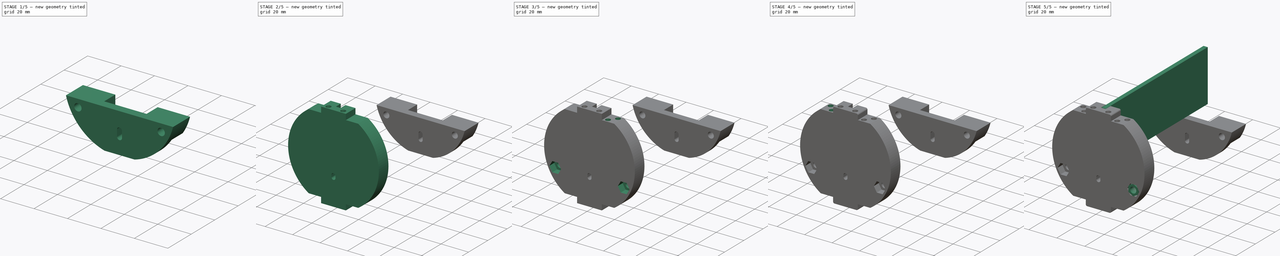
[diagram: build sequence overview — one tinted view per stage of 5, left to right]
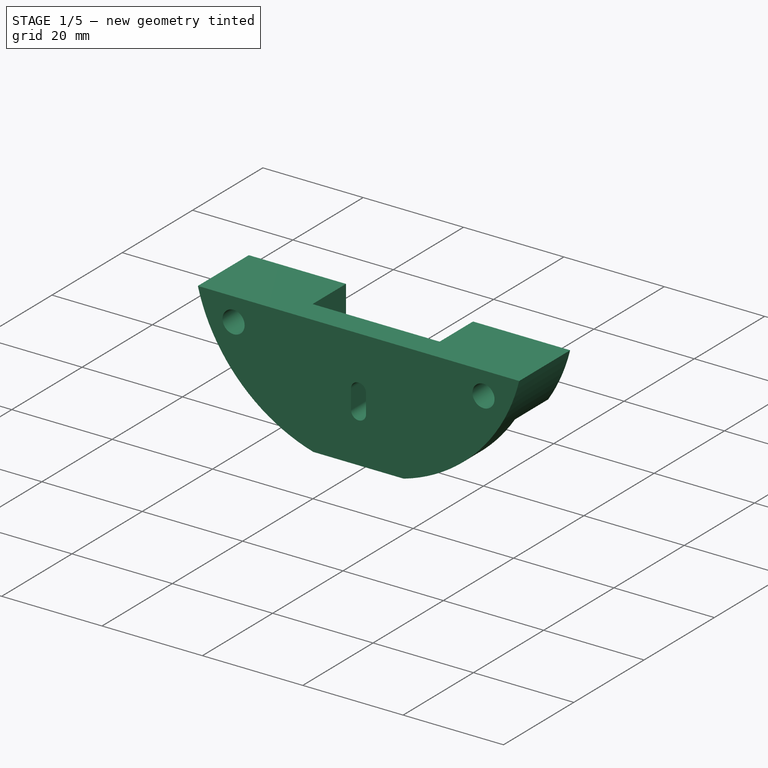
[diagram: stage 1 of 5 — iso view after this stage's code; geometry added in this stage tinted green]
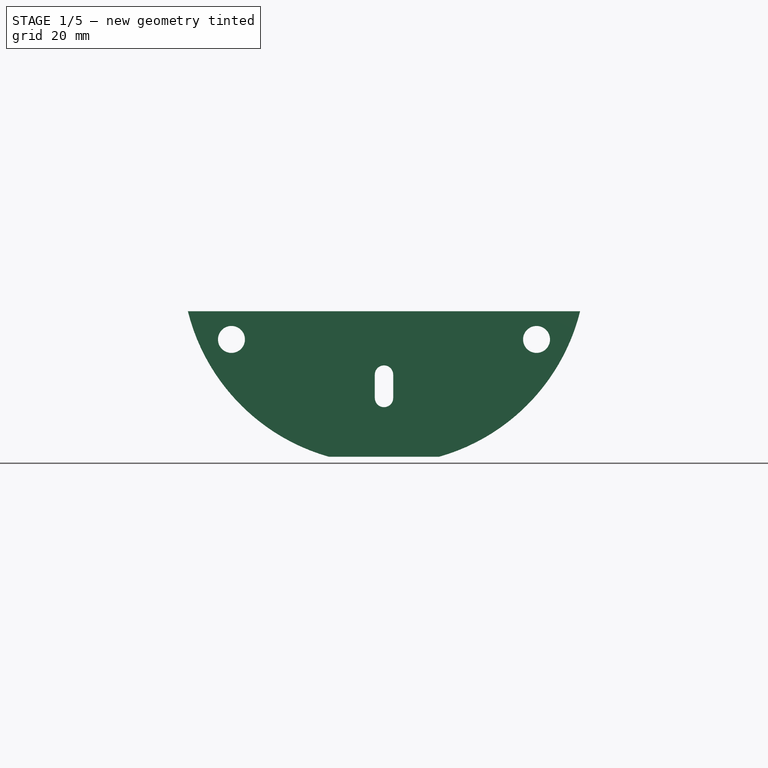
[diagram: stage 1 of 5 — front view after this stage's code; geometry added in this stage tinted green]
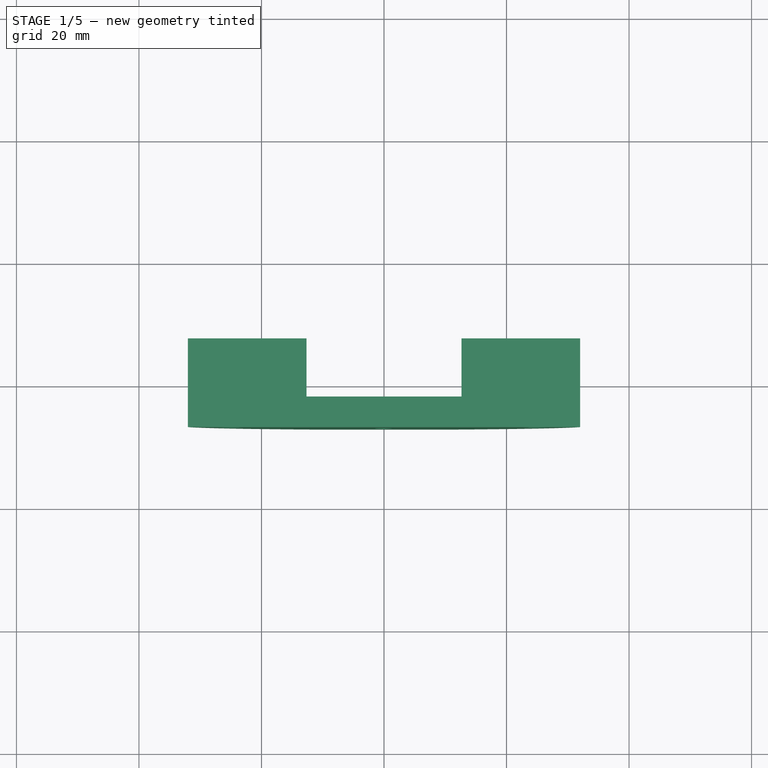
[diagram: stage 1 of 5 — top view after this stage's code; geometry added in this stage tinted green]
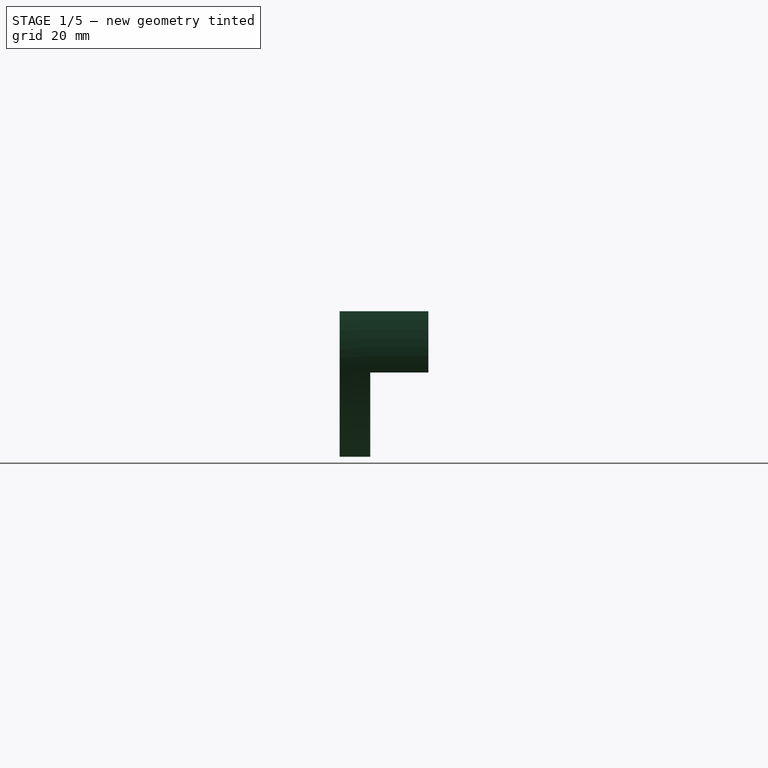
[diagram: stage 1 of 5 — right view after this stage's code; geometry added in this stage tinted green]
FCSTD DOCUMENT  (FreeCAD 0.19R24276 (Git))
Label: Corte_piezas_DEF_3
License: Creative Commons Attribution-ShareAlike
LicenseURL: http://creativecommons.org/licenses/by-sa/4.0/
objects: Sketcher::SketchObject×15, PartDesign::Pad×8, PartDesign::Body×7, PartDesign::Pocket×7, PartDesign::ShapeBinder×5, PartDesign::Fillet×4, Spreadsheet::Sheet×1, PartDesign::Mirrored×1
note: 66 computed .brp shape members not serialized (recipe doc carries the construction recipe); baked Part::Feature solids carry a one-line shape summary decoded from their .brp

FEATURE [Spreadsheet::Sheet] Spreadsheet  label="Datos"
  cells = A1=Diámetro pila; B1(DiametroPila)=18; A2=Tolerancia; B2(tolerancia)=0.4; A3=Largo Pila; B3(largoPila)=65; A4=Separacion; B4(separacion)=1; A5=Grosor tapa; B5(grosortapa)=4.5; A6=Largo Bote; B6(LargoBote)=115; A7= Rosca pasante Diámetro; B7(roscaPasante4)=4; A8=Ancho placa electrónica; B8(anchoPlaca)=3; A9=Diámetro tornillos placa; B9(tornillosParaLaPlaca)=3
FEATURE [Sketcher::SketchObject] Sketch  label="habitaculo_pila_antena"
  FullyConstrained = true
  MapMode = 5
  Placement = pos=(0,0,0) rot=(1,0,0;1.5708rad)
  Support = -> [XZ_Plane]
  expr: Constraints[7] = <<Datos>>.tolerancia + <<Datos>>.roscaPasante4
  expr: Constraints[2] = <<Datos>>.DiametroPila + <<Datos>>.tolerancia
  expr: Constraints[15] = <<Datos>>.DiametroPila
  sketch-geometry (13):
    g0: Circle CenterX=0 CenterY=0 CenterZ=0 NormalX=0 NormalY=0 NormalZ=1 AngleXU=0 Radius=33
    g1: LineSegment StartX=-9 StartY=-31.749 StartZ=0 EndX=9 EndY=-31.749 EndZ=0
    g2: LineSegment StartX=-32.0156 StartY=-8 StartZ=0 EndX=32.0156 EndY=-8 EndZ=0
    g3: ArcOfCircle CenterX=-9 CenterY=-20.249 CenterZ=0 NormalX=0 NormalY=0 NormalZ=1 AngleXU=0 Radius=9.2 StartAngle=0.208894 EndAngle=2.4418
    g4: ArcOfCircle CenterX=9 CenterY=-20.249 CenterZ=0 NormalX=0 NormalY=0 NormalZ=1 AngleXU=0 Radius=9.2 StartAngle=3.35049 EndAngle=9.21588
    g5: Circle CenterX=24.9 CenterY=-12.6 CenterZ=0 NormalX=0 NormalY=0 NormalZ=1 AngleXU=0 Radius=2.2
    g6: ArcOfCircle CenterX=0 CenterY=0 CenterZ=0 NormalX=0 NormalY=0 NormalZ=1 AngleXU=0 Radius=33 StartAngle=3.38646 EndAngle=4.43616
    g7: ArcOfCircle CenterX=0 CenterY=0 CenterZ=0 NormalX=0 NormalY=0 NormalZ=1 AngleXU=0 Radius=33 StartAngle=4.98862 EndAngle=6.03832
    g8: ArcOfCircle CenterX=-18.8935 CenterY=-15.243 CenterZ=0 NormalX=0 NormalY=0 NormalZ=1 AngleXU=0 Radius=3 StartAngle=0.311443 EndAngle=5.03488
    g9: ArcOfCircle CenterX=-9 CenterY=-20.249 CenterZ=0 NormalX=0 NormalY=0 NormalZ=1 AngleXU=0 Radius=9.2 StartAngle=2.90452 EndAngle=6.07429
    g10: Circle CenterX=-24.9 CenterY=-12.6 CenterZ=0 NormalX=0 NormalY=0 NormalZ=1 AngleXU=0 Radius=2.2
    g11: Circle CenterX=0 CenterY=-12.6 CenterZ=0 NormalX=0 NormalY=0 NormalZ=1 AngleXU=0 Radius=1.45
    g12: LineSegment StartX=24.9 StartY=-12.6 StartZ=0 EndX=0 EndY=-12.6 EndZ=0
  constraints (38):
    c: Diameter(g0) = 66
    c: Horizontal(g1)
    c: Diameter(g3) = 18.4
    c: Equal(g3,g4)
    c: Coincident(g4,g9)
    c: Coincident(g4,g3)
    c: Coincident(g0,g-1)
    c: Diameter(g5) = 4.4
    c: Horizontal(g2)
    c: Vertical(g1,g4)
    c: Coincident(g6,g-1)
    c: Coincident(g6,g1)
    c: Coincident(g7,g6)
    c: Coincident(g7,g1)
    c: Symmetric(g4,g3,g-2)
    c: DistanceX(g3,g4) = 18
    c: PointOnObject(g1,g0)
    c: DistanceY(g1,g3) = 11.5
    c: DistanceY(g2,g6) = 8
    c: PointOnObject(g6,g0)
    c: Coincident(g2,g6)
    c: Coincident(g7,g2)
    c: Equal(g3,g9)
    c: Coincident(g3,g8)
    c: Coincident(g9,g8)
    c: Coincident(g3,g9)
    c: Radius(g8) = 3
    c: DistanceX(g8,g2) = -13.1222
    c: DistanceY(g8,g2) = 7.24297
    c: Symmetric(g10,g5,g-2)
    c: Equal(g10,g5)
    c: Diameter(g11) = 2.9  'Antena'
    c: Coincident(g12,g5)
    c: Coincident(g12,g11)
    c: Horizontal(g12)
    c: PointOnObject(g11,g-2)
    c: DistanceY(g5,g2) = 4.6
    c: DistanceX(g11,g5) = 24.9
FEATURE [PartDesign::Pad] Pad  label="habitaculo_Pila"
  Direction = (1,1,1)
  Length = 66
  Length2 = 100
  Midplane = true
  Placement = pos=(0,0,0) rot=(1,0,0;1.5708rad)
  Profile = -> Sketch
  Type = 0
  expr: Length = <<Datos>>.largoPila + <<Datos>>.separacion
FEATURE [Sketcher::SketchObject] Sketch001  label="TapaHabitaculoSK"
  ExternalGeometry = -> [Pad]
  FullyConstrained = true
  MapMode = 5
  Placement = pos=(0,-33,1e-16) rot=(1,0,0;1.5708rad)
  Support = -> [Pad]
  sketch-geometry (7):
    g0: ArcOfCircle CenterX=0 CenterY=-5.4e-15 CenterZ=0 NormalX=0 NormalY=0 NormalZ=1 AngleXU=0 Radius=33 StartAngle=3.38646 EndAngle=4.43616
    g1: ArcOfCircle CenterX=0 CenterY=-5.4e-15 CenterZ=0 NormalX=0 NormalY=0 NormalZ=1 AngleXU=0 Radius=33 StartAngle=4.98862 EndAngle=6.03832
    g2: LineSegment StartX=-32.0156 StartY=-8 StartZ=0 EndX=32.0156 EndY=-8 EndZ=0
    g3: LineSegment StartX=-9 StartY=-31.749 StartZ=0 EndX=9 EndY=-31.749 EndZ=0
    g4: Circle CenterX=-24.9 CenterY=-12.6 CenterZ=0 NormalX=0 NormalY=0 NormalZ=1 AngleXU=0 Radius=2.2
    g5: Circle CenterX=0 CenterY=-12.6 CenterZ=0 NormalX=0 NormalY=0 NormalZ=1 AngleXU=0 Radius=1.45
    g6: Circle CenterX=24.9 CenterY=-12.6 CenterZ=0 NormalX=0 NormalY=0 NormalZ=1 AngleXU=0 Radius=2.2
  constraints (15):
    c: Coincident(g0,g-3)
    c: Coincident(g0,g-3)
    c: Coincident(g1,g0)
    c: Coincident(g1,g-4)
    c: Coincident(g1,g-4)
    c: Coincident(g2,g0)
    c: Coincident(g2,g1)
    c: Coincident(g3,g0)
    c: Coincident(g3,g1)
    c: Coincident(g4,g-6)
    c: PointOnObject(g-5,g4)
    c: Coincident(g5,g-7)
    c: Coincident(g6,g-8)
    c: Equal(g6,g-8)
    c: Equal(g5,g-7)
FEATURE [PartDesign::Pad] Pad001  label="TapaHabitaculoPilas"
  BaseFeature = -> Pad
  Direction = (1,1,1)
  Length = 4.5
  Length2 = 100
  Placement = pos=(0,0,0) rot=(1,0,0;1.5708rad)
  Profile = -> Sketch001
  Type = 0
  expr: Length = <<Datos>>.grosortapa
FEATURE [PartDesign::Body] Body006  label="LateralA"
  Group = -> [ShapeBinder005,Sketch026,Pad012,Sketch027,Pocket,Sketch028,Pocket012,Sketch029,Pocket013,Sketch030,Pocket014,Sketch031,Pocket015,Sketch032,Pocket016,Mirrored,Fillet,Fillet001,Fillet002]
  Origin = -> Origin006
  Tip = -> Fillet002
FEATURE [PartDesign::ShapeBinder] ShapeBinder006
  Placement = pos=(0,33,7e-15) rot=(0,0,1;0rad)
  Support = -> [Pad001]
  TraceSupport = false
FEATURE [Sketcher::SketchObject] Sketch033
  ExternalGeometry = -> [ShapeBinder006]
  FullyConstrained = true
  MapMode = 5
  Placement = pos=(0,33,7e-15) rot=(0,0.707107,0.707107;3.14159rad)
  Support = -> [ShapeBinder006]
  sketch-geometry (10):
    g0: ArcOfCircle CenterX=1.2e-15 CenterY=0 CenterZ=0 NormalX=0 NormalY=0 NormalZ=1 AngleXU=0 Radius=33 StartAngle=4.98862 EndAngle=6.03832
    g1: ArcOfCircle CenterX=1.2e-15 CenterY=0 CenterZ=0 NormalX=0 NormalY=0 NormalZ=1 AngleXU=0 Radius=33 StartAngle=3.38646 EndAngle=4.43616
    g2: LineSegment StartX=-32.0156 StartY=-8 StartZ=0 EndX=32.0156 EndY=-8 EndZ=0
    g3: LineSegment StartX=9 StartY=-31.749 StartZ=0 EndX=-9 EndY=-31.749 EndZ=0
    g4: ArcOfCircle CenterX=0 CenterY=-18.3411 CenterZ=0 NormalX=0 NormalY=0 NormalZ=1 AngleXU=0 Radius=1.5 StartAngle=9e-16 EndAngle=3.14159
    g5: ArcOfCircle CenterX=0 CenterY=-22.1569 CenterZ=0 NormalX=0 NormalY=0 NormalZ=1 AngleXU=0 Radius=1.5 StartAngle=3.14159 EndAngle=6.28319
    g6: LineSegment StartX=-1.5 StartY=-18.3411 StartZ=0 EndX=-1.5 EndY=-22.1569 EndZ=0
    g7: LineSegment StartX=1.5 StartY=-18.3411 StartZ=0 EndX=1.5 EndY=-22.1569 EndZ=0
    g8: Circle CenterX=24.9 CenterY=-12.6 CenterZ=0 NormalX=0 NormalY=0 NormalZ=1 AngleXU=0 Radius=2.2
    g9: Circle CenterX=-24.9 CenterY=-12.6 CenterZ=0 NormalX=0 NormalY=0 NormalZ=1 AngleXU=0 Radius=2.2
  constraints (21):
    c: Coincident(g0,g-3)
    c: Coincident(g0,g-4)
    c: Coincident(g1,g0)
    c: Coincident(g1,g-3)
    c: Coincident(g1,g-4)
    c: Coincident(g2,g1)
    c: Coincident(g2,g0)
    c: Coincident(g3,g0)
    c: Coincident(g3,g1)
    c: Tangent(g4,g7) = 1.5708
    c: Tangent(g4,g6) = -1.5708
    c: Tangent(g6,g5) = -1.5708
    c: Tangent(g7,g5) = 1.5708
    c: Vertical(g6)
    c: Coincident(g4,g-5)
    c: Coincident(g5,g-6)
    c: Diameter(g4) = 3
    c: Coincident(g8,g-8)
    c: Equal(g8,g-7)
    c: Coincident(g9,g-7)
    c: Equal(g9,g-7)
FEATURE [PartDesign::Pad] Pad013  label="tapa_pilas"
  Direction = (1,1,1)
  Length = 5
  Length2 = 100
  Placement = pos=(0,33,7e-15) rot=(0,0,1;0rad)
  Profile = -> Sketch033
  Type = 0
FEATURE [Sketcher::SketchObject] Sketch034
  ExternalGeometry = -> [Pad013]
  FullyConstrained = true
  MapMode = 5
  Placement = pos=(0,38,8.7e-15) rot=(0,0.707107,0.707107;3.14159rad)
  Support = -> [Pad013]
  sketch-geometry (10):
    g0: ArcOfCircle CenterX=0 CenterY=0 CenterZ=0 NormalX=0 NormalY=0 NormalZ=1 AngleXU=0 Radius=33 StartAngle=3.38646 EndAngle=3.71852
    g1: LineSegment StartX=-27.6586 StartY=-18 StartZ=0 EndX=-12.6586 EndY=-18 EndZ=0
    g2: LineSegment StartX=-12.6586 StartY=-18 StartZ=0 EndX=-12.6586 EndY=-8 EndZ=0
    g3: LineSegment StartX=-32.0156 StartY=-8 StartZ=0 EndX=-12.6586 EndY=-8 EndZ=0
    g4: Circle CenterX=-24.9 CenterY=-12.6 CenterZ=0 NormalX=0 NormalY=0 NormalZ=1 AngleXU=0 Radius=2.2
    g5: ArcOfCircle CenterX=-5.1e-15 CenterY=-8.1e-15 CenterZ=0 NormalX=0 NormalY=0 NormalZ=1 AngleXU=0 Radius=33 StartAngle=5.70625 EndAngle=6.03832
    g6: LineSegment StartX=27.6586 StartY=-18 StartZ=0 EndX=12.6586 EndY=-18 EndZ=0
    g7: LineSegment StartX=12.6586 StartY=-18 StartZ=0 EndX=12.6586 EndY=-8 EndZ=0
    g8: LineSegment StartX=32.0156 StartY=-8 StartZ=0 EndX=12.6586 EndY=-8 EndZ=0
    g9: Circle CenterX=24.9 CenterY=-12.6 CenterZ=0 NormalX=0 NormalY=0 NormalZ=1 AngleXU=0 Radius=2.2
  constraints (24):
    c: Coincident(g0,g-1)
    c: Coincident(g0,g-3)
    c: Coincident(g1,g0)
    c: Horizontal(g1)
    c: PointOnObject(g2,g-3)
    c: Vertical(g2)
    c: Coincident(g2,g1)
    c: Coincident(g3,g0)
    c: Coincident(g3,g2)
    c: DistanceY(g2,g2) = 10
    c: DistanceX(g1,g1) = 15
    c: Coincident(g4,g-4)
    c: Equal(g-4,g4)
    c: Coincident(g6,g5)
    c: Coincident(g7,g6)
    c: Coincident(g8,g5)
    c: Coincident(g8,g7)
    c: Symmetric(g7,g2,g-2)
    c: Symmetric(g6,g1,g-2)
    c: Symmetric(g5,g0,g-2)
    c: Symmetric(g9,g4,g-2)
    c: Equal(g9,g4)
    c: Equal(g5,g0)
    c: Symmetric(g5,g0,g-2)
FEATURE [PartDesign::Pad] Pad014
  BaseFeature = -> Pad013
  Direction = (1,1,1)
  Length = 9.5
  Length2 = 100
  Placement = pos=(0,33,7e-15) rot=(0,0,1;0rad)
  Profile = -> Sketch034
  Type = 0
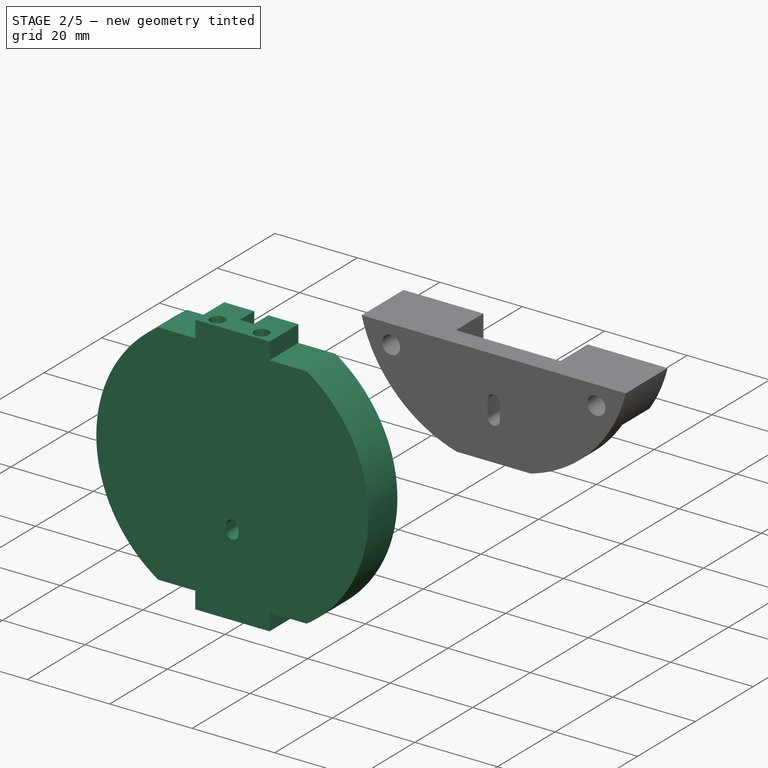
[diagram: stage 2 of 5 — iso view after this stage's code; geometry added in this stage tinted green]
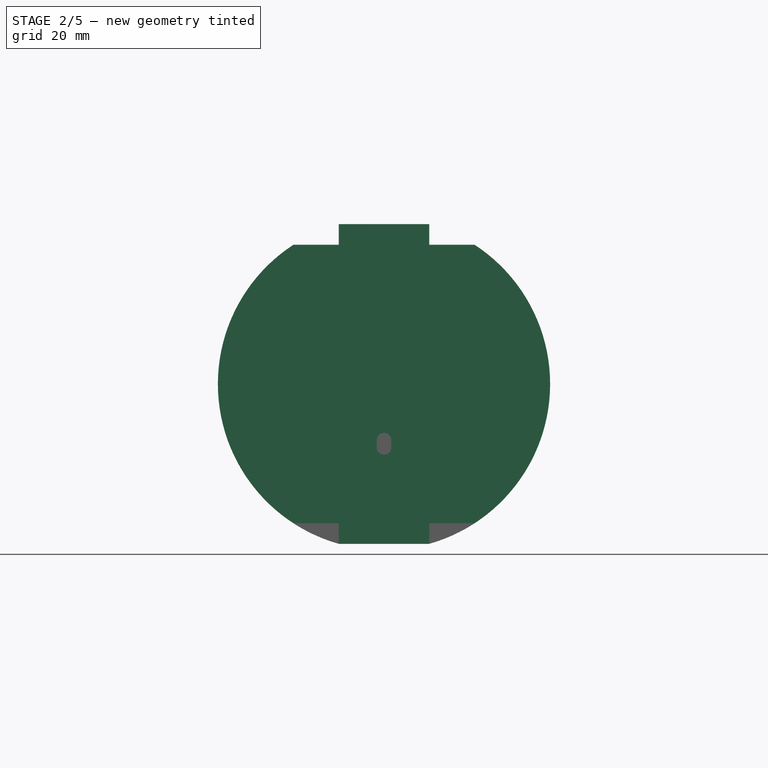
[diagram: stage 2 of 5 — front view after this stage's code; geometry added in this stage tinted green]
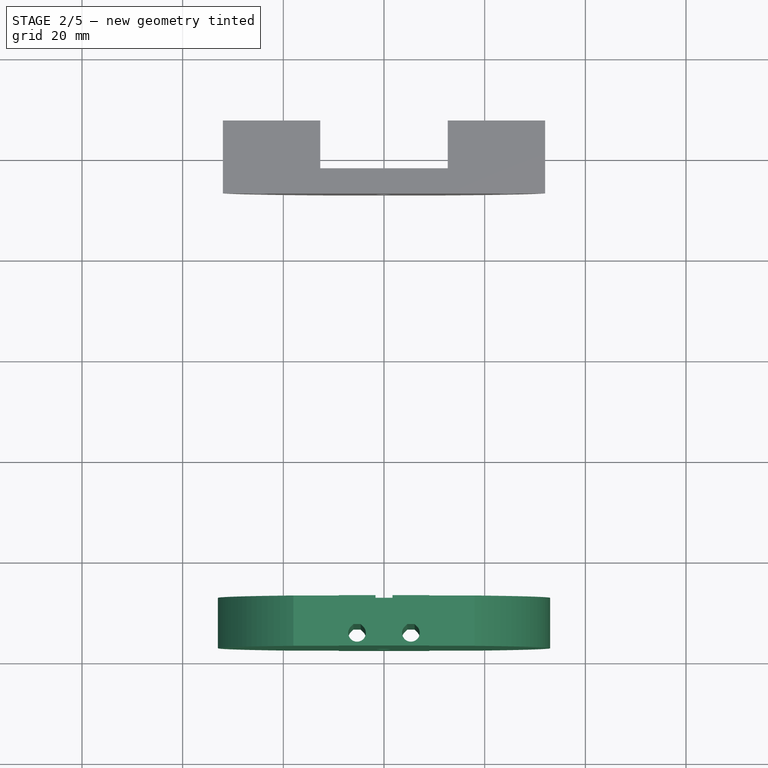
[diagram: stage 2 of 5 — top view after this stage's code; geometry added in this stage tinted green]
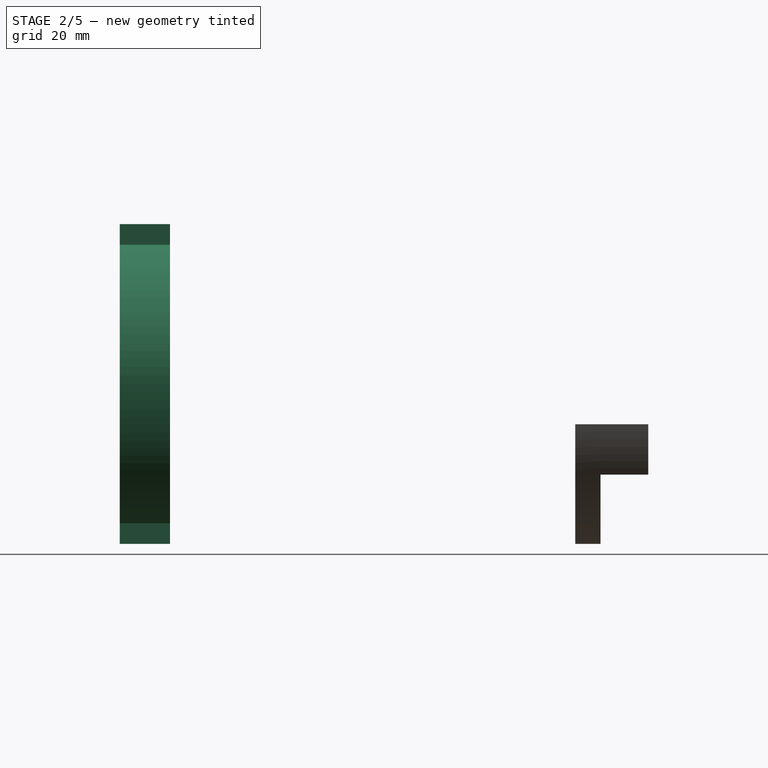
[diagram: stage 2 of 5 — right view after this stage's code; geometry added in this stage tinted green]
FEATURE [PartDesign::Body] Body005  label="Pasante2"
  Group = -> [ShapeBinder004,Sketch025,Pad011]
  Origin = -> Origin005
  Placement = pos=(-51.8,10,1.8e-15) rot=(0,0,1;0rad)
  Tip = -> Pad011
FEATURE [PartDesign::ShapeBinder] ShapeBinder005
  Placement = pos=(0,-4.5,-1e-15) rot=(0,0,1;0rad)
  Support = -> [Pad001]
  TraceSupport = false
FEATURE [Sketcher::SketchObject] Sketch026
  ExternalGeometry = -> [ShapeBinder005]
  FullyConstrained = true
  Placement = pos=(0,-47.5,0) rot=(1,0,0;1.5708rad)
  Support = -> [ShapeBinder005]
  sketch-geometry (26):
    g0: ArcOfCircle CenterX=0 CenterY=0 CenterZ=0 NormalX=0 NormalY=0 NormalZ=1 AngleXU=0 Radius=33 StartAngle=5.28932 EndAngle=7.27705
    g1: LineSegment StartX=-9 StartY=-31.749 StartZ=0 EndX=9 EndY=-31.749 EndZ=0
    g2: LineSegment StartX=-9 StartY=31.749 StartZ=0 EndX=9 EndY=31.749 EndZ=0
    g3: ArcOfCircle CenterX=0 CenterY=0 CenterZ=0 NormalX=0 NormalY=0 NormalZ=1 AngleXU=0 Radius=33 StartAngle=2.14773 EndAngle=4.13546
    g4: ArcOfCircle CenterX=0 CenterY=-12.6 CenterZ=0 NormalX=0 NormalY=0 NormalZ=1 AngleXU=0 Radius=1.45 StartAngle=3.14159 EndAngle=6.28319
    g5: ArcOfCircle CenterX=1e-16 CenterY=-11.15 CenterZ=0 NormalX=0 NormalY=0 NormalZ=1 AngleXU=0 Radius=1.45 StartAngle=0 EndAngle=3.14159
    g6: LineSegment StartX=1.45 StartY=-12.6 StartZ=0 EndX=1.45 EndY=-11.15 EndZ=0
    g7: LineSegment StartX=-1.45 StartY=-12.6 StartZ=0 EndX=-1.45 EndY=-11.15 EndZ=0
    g8: LineSegment StartX=-18 StartY=27.6586 StartZ=0 EndX=-18 EndY=-27.6586 EndZ=0
    g9: LineSegment StartX=18 StartY=27.6586 StartZ=0 EndX=18 EndY=-27.6586 EndZ=0
    g10: LineSegment StartX=27.0362 StartY=-16.3 StartZ=0 EndX=29.1724 EndY=-12.6 EndZ=0
    g11: LineSegment StartX=29.1724 StartY=-12.6 StartZ=0 EndX=27.0362 EndY=-8.9 EndZ=0
    g12: LineSegment StartX=27.0362 StartY=-8.9 StartZ=0 EndX=22.7638 EndY=-8.9 EndZ=0
    g13: LineSegment StartX=22.7638 StartY=-8.9 StartZ=0 EndX=20.6276 EndY=-12.6 EndZ=0
    g14: LineSegment StartX=20.6276 StartY=-12.6 StartZ=0 EndX=22.7638 EndY=-16.3 EndZ=0
    g15: LineSegment StartX=22.7638 StartY=-16.3 StartZ=0 EndX=27.0362 EndY=-16.3 EndZ=0
    g16: Circle CenterX=24.9 CenterY=-12.6 CenterZ=0 NormalX=0 NormalY=0 NormalZ=1 AngleXU=0 Radius=4.27239
    g17: LineSegment StartX=22.7638 StartY=-8.9 StartZ=0 EndX=29.1724 EndY=-12.6 EndZ=0
    g18: LineSegment StartX=-18 StartY=27.6586 StartZ=0 EndX=-9 EndY=27.6586 EndZ=0
    g19: LineSegment StartX=-9 StartY=31.749 StartZ=0 EndX=-9 EndY=27.6586 EndZ=0
    g20: LineSegment StartX=-18 StartY=-27.6586 StartZ=0 EndX=-9 EndY=-27.6586 EndZ=0
    g21: LineSegment StartX=-9 StartY=-31.749 StartZ=0 EndX=-9 EndY=-27.6586 EndZ=0
    g22: LineSegment StartX=9 StartY=31.749 StartZ=0 EndX=9 EndY=27.6586 EndZ=0
    g23: LineSegment StartX=18 StartY=27.6586 StartZ=0 EndX=9 EndY=27.6586 EndZ=0
    g24: LineSegment StartX=9 StartY=-31.749 StartZ=0 EndX=9 EndY=-27.6586 EndZ=0
    g25: LineSegment StartX=18 StartY=-27.6586 StartZ=0 EndX=9 EndY=-27.6586 EndZ=0
  constraints (65):
    c: Coincident(g0,g-1)
    c: Coincident(g1,g-4)
    c: PointOnObject(g2,g0)
    c: Horizontal(g2)
    c: Equal(g0,g3)
    c: Coincident(g0,g3)
    c: Tangent(g4,g7) = 1.5708
    c: Tangent(g4,g6) = -1.5708
    c: Tangent(g6,g5) = -1.5708
    c: Tangent(g7,g5) = 1.5708
    c: Vertical(g6)
    c: Equal(g4,g5)
    c: Coincident(g4,g-6)
    c: PointOnObject(g4,g-6)
    c: PointOnObject(g5,g-6)
    c: Vertical(g8)
    c: Vertical(g9)
    c: Coincident(g10,g11)
    c: Coincident(g11,g12)
    c: Coincident(g12,g13)
    c: Coincident(g13,g14)
    c: Coincident(g14,g15)
    c: Coincident(g15,g10)
    c: Equal(g10, g11-g15) x5
    c: PointOnObject(g10,g16)
    c: PointOnObject(g11,g16)
    c: PointOnObject(g12,g16)
    c: PointOnObject(g13,g16)
    c: PointOnObject(g14,g16)
    c: PointOnObject(g15,g16)
    c: Coincident(g16,g-7)
    c: Coincident(g17,g12)
    c: Coincident(g17,g10)
    c: Distance(g17) = 7.4
    c: Horizontal(g15)
    c: Coincident(g19,g2)
    c: Coincident(g19,g18)
    c: Vertical(g19)
    c: Horizontal(g18)
    c: Coincident(g3,g8)
    c: Coincident(g20,g8)
    c: Coincident(g21,g1)
    c: Coincident(g21,g20)
    c: Vertical(g21)
    c: Horizontal(g20)
    c: Coincident(g3,g8)
    c: Vertical(g22)
    c: Coincident(g23,g9)
    c: Coincident(g23,g22)
    c: Coincident(g24,g1)
    c: Vertical(g24)
    c: Coincident(g25,g9)
    c: Coincident(g25,g24)
    c: Horizontal(g25)
    c: Horizontal(g23)
    c: Coincident(g0,g9)
    c: Coincident(g0,g9)
    c: Equal(g23,g18)
    c: Equal(g20,g25)
    c: Equal(g25,g23)
    c: Coincident(g22,g2)
    c: Coincident(g18,g3)
    c: PointOnObject(g0,g-3)
    c: Coincident(g1,g-3)
    c: DistanceX(g23,g23) = 9
FEATURE [PartDesign::Pad] Pad012  label="Cuerpo_principal"
  Direction = (1,1,1)
  Length = 10
  Length2 = 100
  Placement = pos=(0,-4.5,-1e-15) rot=(0,0,1;0rad)
  Profile = -> Sketch026
  Type = 0
FEATURE [Sketcher::SketchObject] Sketch027
  ExternalGeometry = -> [Pad012]
  FullyConstrained = true
  MapMode = 5
  Placement = pos=(0,-4.5,31.749) rot=(0,0,1;0rad)
  Support = -> [Pad012]
  sketch-geometry (4):
    g0: LineSegment StartX=-1.7 StartY=-48 StartZ=0 EndX=1.7 EndY=-48 EndZ=0
    g1: LineSegment StartX=1.7 StartY=-48 StartZ=0 EndX=1.7 EndY=-43 EndZ=0
    g2: LineSegment StartX=1.7 StartY=-43 StartZ=0 EndX=-1.7 EndY=-43 EndZ=0
    g3: LineSegment StartX=-1.7 StartY=-43 StartZ=0 EndX=-1.7 EndY=-48 EndZ=0
  constraints (11):
    c: Coincident(g0,g1)
    c: Coincident(g1,g2)
    c: Coincident(g2,g3)
    c: Coincident(g3,g0)
    c: Horizontal(g0)
    c: Vertical(g1)
    c: Vertical(g3)
    c: PointOnObject(g1,g-4)
    c: Symmetric(g1,g2,g-2)
    c: DistanceX(g0,g0) = 3.4
    c: DistanceY(g1,g1) = 5
FEATURE [PartDesign::Pocket] Pocket  label="Ranura_placa"
  BaseFeature = -> Pad012
  Length = 30
  Length2 = 100
  Placement = pos=(0,-4.5,-1e-15) rot=(0,0,1;0rad)
  Profile = -> Sketch027
  Type = 0
FEATURE [Sketcher::SketchObject] Sketch028  label="SK_agujeros_pasantes_paracaidas"
  ExternalGeometry = -> [Pocket]
  FullyConstrained = true
  MapMode = 5
  Placement = pos=(0,-4.5,31.749) rot=(0,0,1;0rad)
  Support = -> [Pocket]
  sketch-geometry (14):
    g0: LineSegment StartX=-1.7 StartY=-48 StartZ=0 EndX=-9 EndY=-48 EndZ=0
    g1: LineSegment StartX=-1.7 StartY=-48 StartZ=0 EndX=-9 EndY=-53 EndZ=0
    g2: LineSegment StartX=-6.07487 StartY=-48.75 StartZ=0 EndX=-4.62513 EndY=-48.75 EndZ=0
    g3: ArcOfCircle CenterX=-5.35 CenterY=-50.5 CenterZ=0 NormalX=0 NormalY=0 NormalZ=1 AngleXU=0 Radius=1.75 StartAngle=2.35619 EndAngle=7.06858
    g4: LineSegment StartX=-6.07487 StartY=-48.75 StartZ=0 EndX=-6.58744 EndY=-49.2626 EndZ=0
    g5: LineSegment StartX=-4.11256 StartY=-49.2626 StartZ=0 EndX=-4.62513 EndY=-48.75 EndZ=0
    g6: LineSegment StartX=-6.58744 StartY=-49.2626 StartZ=0 EndX=-4.11256 EndY=-49.2626 EndZ=0
    g7: Circle CenterX=-5.35 CenterY=-50.5 CenterZ=0 NormalX=0 NormalY=0 NormalZ=1 AngleXU=0 Radius=1.75
    g8: LineSegment StartX=4.62513 StartY=-48.75 StartZ=0 EndX=6.07487 EndY=-48.75 EndZ=0
    g9: ArcOfCircle CenterX=5.35 CenterY=-50.5 CenterZ=0 NormalX=0 NormalY=0 NormalZ=1 AngleXU=0 Radius=1.75 StartAngle=2.35619 EndAngle=7.06858
    g10: LineSegment StartX=4.62513 StartY=-48.75 StartZ=0 EndX=4.11256 EndY=-49.2626 EndZ=0
    g11: LineSegment StartX=6.58744 StartY=-49.2626 StartZ=0 EndX=6.07487 EndY=-48.75 EndZ=0
    g12: LineSegment StartX=4.11256 StartY=-49.2626 StartZ=0 EndX=6.58744 EndY=-49.2626 EndZ=0
    g13: Circle CenterX=5.35 CenterY=-50.5 CenterZ=0 NormalX=0 NormalY=0 NormalZ=1 AngleXU=0 Radius=1.75
  constraints (33):
    c: Coincident(g0,g-8)
    c: PointOnObject(g0,g-3)
    c: Horizontal(g0)
    c: Coincident(g1,g0)
    c: Coincident(g1,g-3)
    c: Horizontal(g2)
    c: Coincident(g4,g2)
    c: Coincident(g5,g2)
    c: Coincident(g6,g3)
    c: Horizontal(g6)
    c: Tangent(g4,g3) = -1.5708
    c: Tangent(g5,g3) = -1.5708
    c: Angle(g6,g4) = 0.785398
    c: Diameter(g3) = 3.5
    c: Symmetric(g0,g1,g3)
    c: Coincident(g7,g3)
    c: PointOnObject(g3,g7)
    c: Tangent(g7,g2)
    c: Coincident(g3,g6)
    c: Horizontal(g8)
    c: Coincident(g10,g8)
    c: Coincident(g11,g8)
    c: Coincident(g12,g9)
    c: Horizontal(g12)
    c: Tangent(g10,g9) = -1.5708
    c: Tangent(g11,g9) = -1.5708
    c: Angle(g12,g10) = 0.785398
    c: Equal(g3,g9) = 3.5
    c: Coincident(g13,g9)
    c: PointOnObject(g9,g13)
    c: Tangent(g13,g8)
    c: Coincident(g9,g12)
    c: Symmetric(g9,g3,g-2)
FEATURE [PartDesign::Pocket] Pocket012  label="agujeros_pasantes_paracaidas"
  BaseFeature = -> Pocket
  Length = 5
  Length2 = 100
  Placement = pos=(0,-4.5,-1e-15) rot=(0,0,1;0rad)
  Profile = -> Sketch028
  Type = 1
FEATURE [PartDesign::Fillet] Fillet003
  Base = -> Pad014 [Edge51,Edge48]
  BaseFeature = -> Pad014
  Placement = pos=(0,33,7e-15) rot=(0,0,1;0rad)
  Radius = 1
  SupportTransform = false
FEATURE [PartDesign::Body] Body007  label="Tapa_Hab_mas_pasantes"
  Group = -> [ShapeBinder006,Sketch033,Pad013,Sketch034,Pad014,Fillet003]
  Origin = -> Origin007
  Tip = -> Fillet003
FEATURE [PartDesign::Body] Body008  label="Lateral_B"
  Origin = -> Origin008
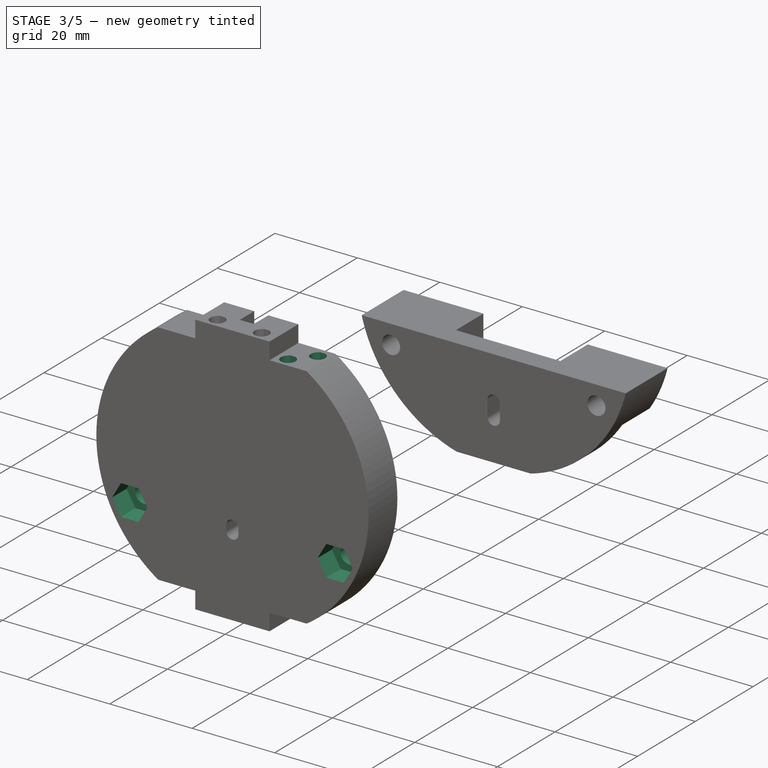
[diagram: stage 3 of 5 — iso view after this stage's code; geometry added in this stage tinted green]
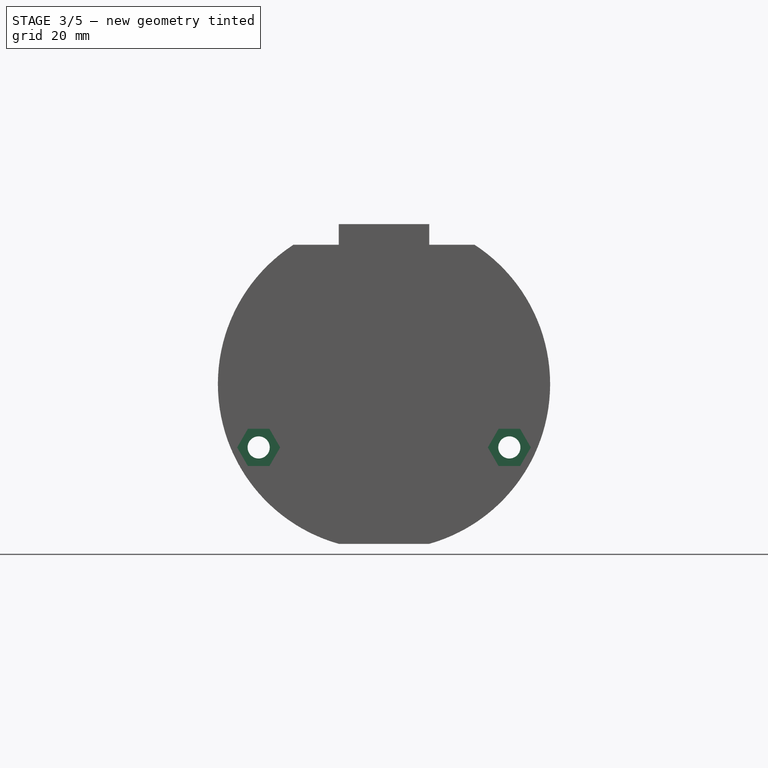
[diagram: stage 3 of 5 — front view after this stage's code; geometry added in this stage tinted green]
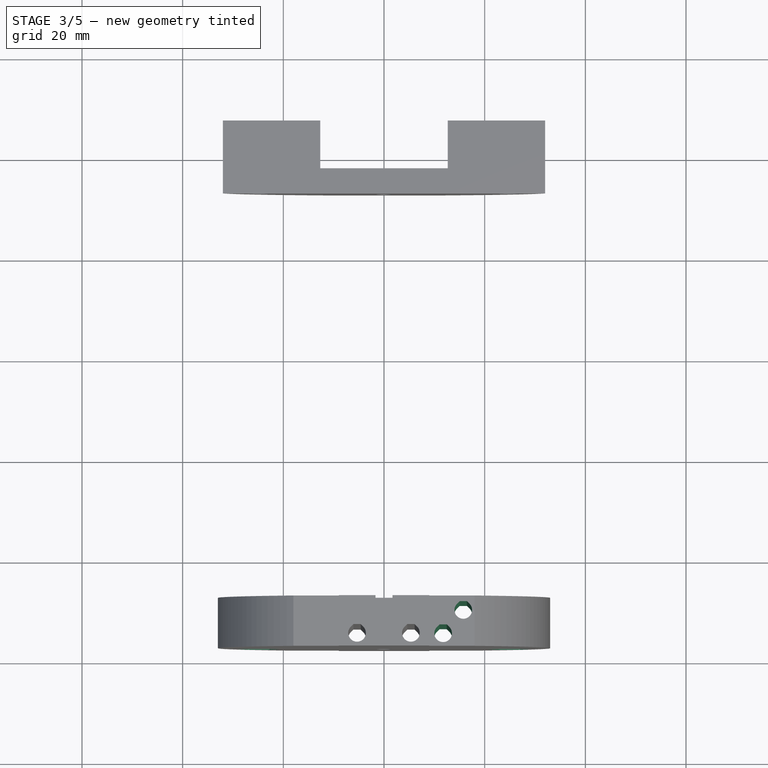
[diagram: stage 3 of 5 — top view after this stage's code; geometry added in this stage tinted green]
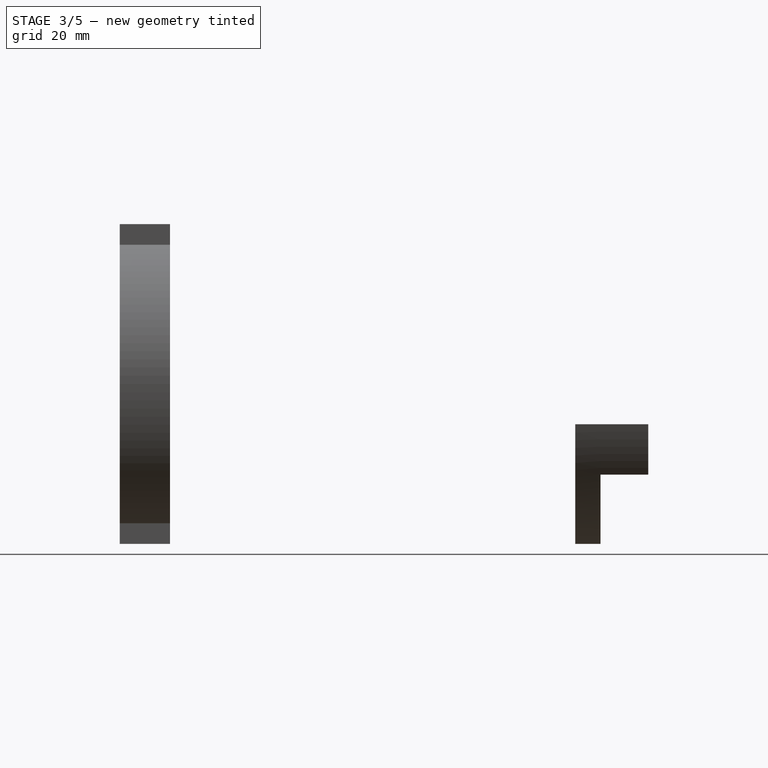
[diagram: stage 3 of 5 — right view after this stage's code; geometry added in this stage tinted green]
FEATURE [Sketcher::SketchObject] Sketch029
  ExternalGeometry = -> [Pocket012]
  FullyConstrained = true
  MapMode = 5
  Placement = pos=(0,-47.5,8.5e-15) rot=(0,0.707107,0.707107;3.14159rad)
  Support = -> [Pocket012]
  sketch-geometry (2):
    g0: Circle CenterX=0 CenterY=-12.6 CenterZ=0 NormalX=0 NormalY=0 NormalZ=1 AngleXU=0 Radius=11
    g1: Circle CenterX=0 CenterY=-12.6 CenterZ=0 NormalX=0 NormalY=0 NormalZ=1 AngleXU=0 Radius=4
  constraints (4):
    c: Coincident(g0,g-3)
    c: Diameter(g0) = 22
    c: Coincident(g1,g0)
    c: Diameter(g1) = 8
FEATURE [PartDesign::Pocket] Pocket013  label="Arandela_GND"
  BaseFeature = -> Pocket012
  Length = 3.5
  Length2 = 100
  Placement = pos=(0,-4.5,-1e-15) rot=(0,0,1;0rad)
  Profile = -> Sketch029
  Type = 0
FEATURE [Sketcher::SketchObject] Sketch030
  ExternalGeometry = -> [ShapeBinder005]
  FullyConstrained = true
  MapMode = 5
  Placement = pos=(0,-57.5,1.07e-14) rot=(1,0,0;1.5708rad)
  Support = -> [Pocket013]
  sketch-geometry (15):
    g0: LineSegment StartX=27.0362 StartY=-16.3 StartZ=0 EndX=29.1724 EndY=-12.6 EndZ=0
    g1: LineSegment StartX=29.1724 StartY=-12.6 StartZ=0 EndX=27.0362 EndY=-8.9 EndZ=0
    g2: LineSegment StartX=27.0362 StartY=-8.9 StartZ=0 EndX=22.7638 EndY=-8.9 EndZ=0
    g3: LineSegment StartX=22.7638 StartY=-8.9 StartZ=0 EndX=20.6276 EndY=-12.6 EndZ=0
    g4: LineSegment StartX=20.6276 StartY=-12.6 StartZ=0 EndX=22.7638 EndY=-16.3 EndZ=0
    g5: LineSegment StartX=22.7638 StartY=-16.3 StartZ=0 EndX=27.0362 EndY=-16.3 EndZ=0
    g6: Circle CenterX=24.9 CenterY=-12.6 CenterZ=0 NormalX=0 NormalY=0 NormalZ=1 AngleXU=0 Radius=4.27239
    g7: LineSegment StartX=-22.7638 StartY=-16.3 StartZ=0 EndX=-20.6276 EndY=-12.6 EndZ=0
    g8: LineSegment StartX=-20.6276 StartY=-12.6 StartZ=0 EndX=-22.7638 EndY=-8.9 EndZ=0
    g9: LineSegment StartX=-22.7638 StartY=-8.9 StartZ=0 EndX=-27.0362 EndY=-8.9 EndZ=0
    g10: LineSegment StartX=-27.0362 StartY=-8.9 StartZ=0 EndX=-29.1724 EndY=-12.6 EndZ=0
    g11: LineSegment StartX=-29.1724 StartY=-12.6 StartZ=0 EndX=-27.0362 EndY=-16.3 EndZ=0
    g12: LineSegment StartX=-27.0362 StartY=-16.3 StartZ=0 EndX=-22.7638 EndY=-16.3 EndZ=0
    g13: Circle CenterX=-24.9 CenterY=-12.6 CenterZ=0 NormalX=0 NormalY=0 NormalZ=1 AngleXU=0 Radius=4.27239
    g14: LineSegment StartX=22.7638 StartY=-8.9 StartZ=0 EndX=29.1724 EndY=-12.6 EndZ=0
  constraints (34):
    c: Coincident(g0,g1)
    c: Coincident(g1,g2)
    c: Coincident(g2,g3)
    c: Coincident(g3,g4)
    c: Coincident(g4,g5)
    c: Coincident(g5,g0)
    c: Equal(g0, g1-g5) x5
    c: PointOnObject(g0,g6)
    c: PointOnObject(g1,g6)
    c: PointOnObject(g2,g6)
    c: PointOnObject(g3,g6)
    c: PointOnObject(g4,g6)
    c: PointOnObject(g5,g6)
    c: Coincident(g6,g-3)
    c: Coincident(g7,g8)
    c: Coincident(g8,g9)
    c: Coincident(g9,g10)
    c: Coincident(g10,g11)
    c: Coincident(g11,g12)
    c: Coincident(g12,g7)
    c: Equal(g7, g8-g12) x5
    c: PointOnObject(g7,g13)
    c: PointOnObject(g8,g13)
    c: PointOnObject(g9,g13)
    c: PointOnObject(g10,g13)
    c: PointOnObject(g11,g13)
    c: PointOnObject(g12,g13)
    c: Coincident(g13,g-4)
    c: Coincident(g14,g2)
    c: Distance(g14) = 7.4
    c: Horizontal(g5)
    c: Coincident(g14,g0)
    c: Equal(g2,g9)
    c: Horizontal(g12)
FEATURE [PartDesign::Pocket] Pocket014  label="Encastro_tuercas"
  BaseFeature = -> Pocket013
  Length = 5
  Length2 = 100
  Placement = pos=(0,-4.5,-1e-15) rot=(0,0,1;0rad)
  Profile = -> Sketch030
  Type = 0
FEATURE [Sketcher::SketchObject] Sketch031
  ExternalGeometry = -> [Pocket014]
  FullyConstrained = true
  MapMode = 5
  Placement = pos=(0,-52.5,4.51e-14) rot=(1,0,0;1.5708rad)
  Support = -> [Pocket014]
  sketch-geometry (3):
    g0: Circle CenterX=24.9 CenterY=-12.6 CenterZ=0 NormalX=0 NormalY=0 NormalZ=1 AngleXU=0 Radius=4.27239
    g1: Circle CenterX=24.9 CenterY=-12.6 CenterZ=0 NormalX=0 NormalY=0 NormalZ=1 AngleXU=0 Radius=2.2
    g2: Circle CenterX=-24.9 CenterY=-12.6 CenterZ=0 NormalX=0 NormalY=0 NormalZ=1 AngleXU=0 Radius=2.2
  constraints (7):
    c: PointOnObject(g-8,g0)
    c: PointOnObject(g-4,g0)
    c: PointOnObject(g-5,g0)
    c: Coincident(g1,g0)
    c: Diameter(g1) = 4.4
    c: Equal(g1,g2) = 4.4
    c: Symmetric(g2,g1,g-2)
FEATURE [PartDesign::Pocket] Pocket015  label="Agujeros_pasantes_tornillos"
  BaseFeature = -> Pocket014
  Length = 5
  Length2 = 100
  Placement = pos=(0,-4.5,-1e-15) rot=(0,0,1;0rad)
  Profile = -> Sketch031
  Type = 1
FEATURE [Sketcher::SketchObject] Sketch032  label="SK_agujeros_pasantes_paracaidas_2"
  ExternalGeometry = -> [Pocket015]
  FullyConstrained = true
  MapMode = 5
  Placement = pos=(0,-4.5,27.6586) rot=(0,0,1;0rad)
  Support = -> [Pocket015]
  sketch-geometry (16):
    g0: LineSegment StartX=11.0251 StartY=-48.75 StartZ=0 EndX=12.4749 EndY=-48.75 EndZ=0
    g1: ArcOfCircle CenterX=11.75 CenterY=-50.5 CenterZ=0 NormalX=0 NormalY=0 NormalZ=1 AngleXU=0 Radius=1.75 StartAngle=2.35619 EndAngle=7.06858
    g2: LineSegment StartX=11.0251 StartY=-48.75 StartZ=0 EndX=10.5126 EndY=-49.2626 EndZ=0
    g3: LineSegment StartX=12.4749 StartY=-48.75 StartZ=0 EndX=12.9874 EndY=-49.2626 EndZ=0
    g4: LineSegment StartX=10.5126 StartY=-49.2626 StartZ=0 EndX=12.9874 EndY=-49.2626 EndZ=0
    g5: LineSegment StartX=6.07487 StartY=-48.75 StartZ=0 EndX=18 EndY=-48.75 EndZ=0
    g6: LineSegment StartX=13.5 StartY=-43 StartZ=0 EndX=13.5 EndY=-53 EndZ=0
    g7: ArcOfCircle CenterX=11.75 CenterY=-50.5 CenterZ=0 NormalX=0 NormalY=0 NormalZ=1 AngleXU=0 Radius=1.75 StartAngle=1.5708 EndAngle=2.35619
    g8: LineSegment StartX=15.0251 StartY=-44.125 StartZ=0 EndX=16.4749 EndY=-44.125 EndZ=0
    g9: ArcOfCircle CenterX=15.75 CenterY=-45.875 CenterZ=0 NormalX=0 NormalY=0 NormalZ=1 AngleXU=0 Radius=1.75 StartAngle=2.35619 EndAngle=7.06858
    g10: LineSegment StartX=15.0251 StartY=-44.125 StartZ=0 EndX=14.5126 EndY=-44.6376 EndZ=0
    g11: LineSegment StartX=16.4749 StartY=-44.125 StartZ=0 EndX=16.9874 EndY=-44.6376 EndZ=0
    g12: LineSegment StartX=14.5126 StartY=-44.6376 StartZ=0 EndX=16.9874 EndY=-44.6376 EndZ=0
    g13: ArcOfCircle CenterX=15.75 CenterY=-45.875 CenterZ=0 NormalX=0 NormalY=0 NormalZ=1 AngleXU=0 Radius=1.75 StartAngle=1.57079 EndAngle=2.35619
    g14: LineSegment StartX=13.5 StartY=-43 StartZ=0 EndX=18 EndY=-48.75 EndZ=0
    g15: LineSegment StartX=13.5 StartY=-48.75 StartZ=0 EndX=18 EndY=-43 EndZ=0
  constraints (43):
    c: Diameter(g1) = 3.5
    c: Coincident(g1,g4)
    c: Horizontal(g4)
    c: Coincident(g0,g2)
    c: Horizontal(g0)
    c: Coincident(g0,g3)
    c: PointOnObject(g5,g-3)
    c: Horizontal(g5)
    c: PointOnObject(g6,g-5)
    c: Vertical(g6)
    c: Symmetric(g-4,g-6,g6)
    c: Tangent(g1,g2) = -1.5708
    c: Tangent(g3,g1) = 1.5708
    c: Coincident(g4,g1)
    c: Coincident(g7,g1)
    c: Coincident(g7,g1)
    c: Tangent(g0,g7)
    c: Angle(g4,g2) = 0.785398
    c: PointOnObject(g7,g0)
    c: Coincident(g5,g-7)
    c: Diameter(g9) = 3.5
    c: Coincident(g9,g12)
    c: Horizontal(g12)
    c: Coincident(g8,g10)
    c: Horizontal(g8)
    c: Coincident(g8,g11)
    c: Tangent(g9,g10) = -1.5708
    c: Tangent(g11,g9) = 1.5708
    c: Coincident(g12,g9)
    c: Coincident(g13,g9)
    c: Coincident(g13,g9)
    c: Tangent(g8,g13)
    c: Angle(g12,g10) = 0.785398
    c: PointOnObject(g13,g8)
    c: Coincident(g14,g6)
    c: Coincident(g14,g5)
    c: PointOnObject(g9,g14)
    c: PointOnObject(g15,g6)
    c: Coincident(g15,g-4)
    c: PointOnObject(g9,g15)
    c: PointOnObject(g15,g5)
    c: PointOnObject(g0,g5)
    c: Tangent(g1,g6)
FEATURE [PartDesign::Pocket] Pocket016  label="Agujeros_pasantes_paracaidas_2"
  BaseFeature = -> Pocket015
  Length = 5
  Length2 = 100
  Placement = pos=(0,-4.5,-1e-15) rot=(0,0,1;0rad)
  Profile = -> Sketch032
  Type = 1
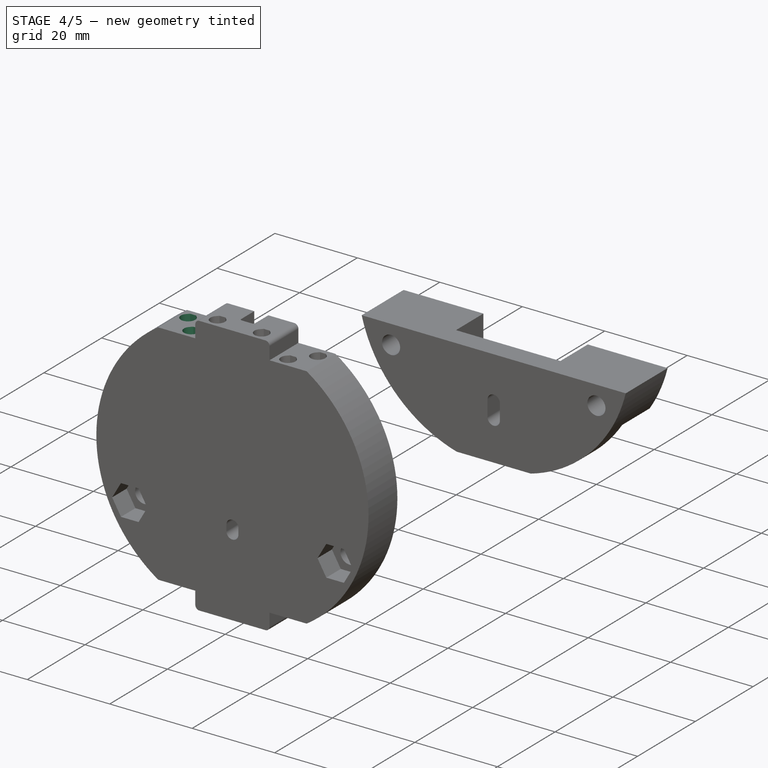
[diagram: stage 4 of 5 — iso view after this stage's code; geometry added in this stage tinted green]
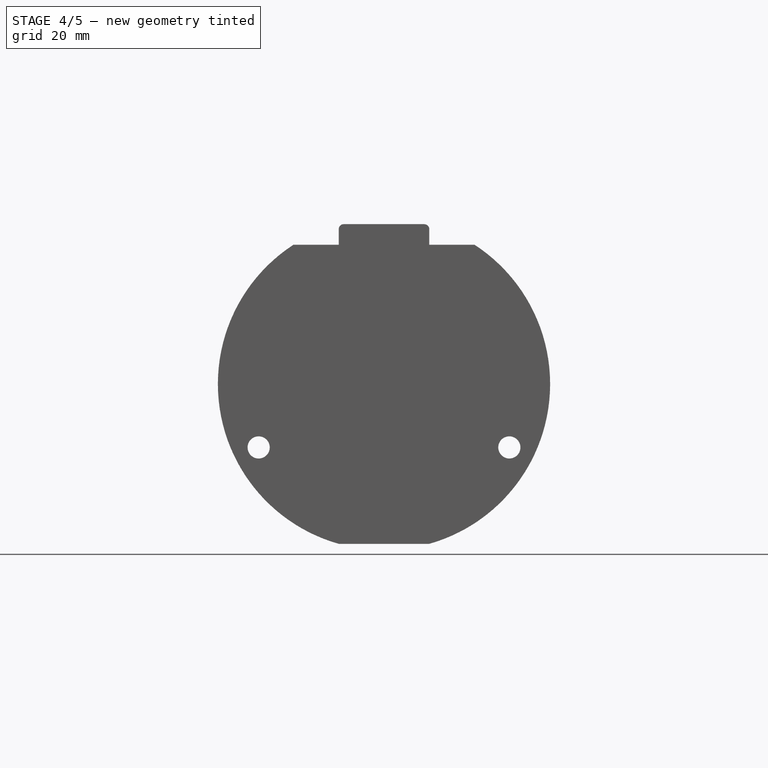
[diagram: stage 4 of 5 — front view after this stage's code; geometry added in this stage tinted green]
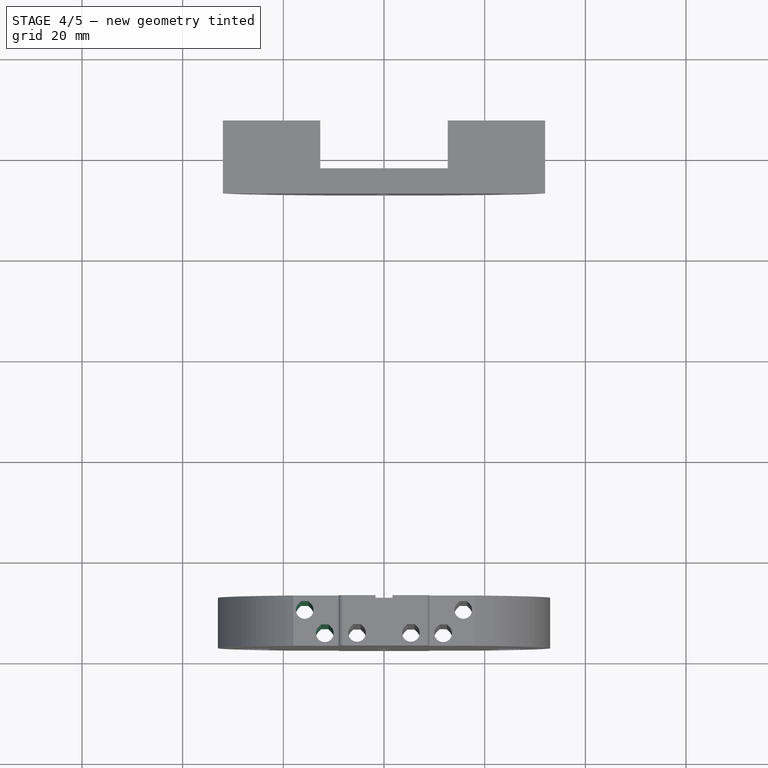
[diagram: stage 4 of 5 — top view after this stage's code; geometry added in this stage tinted green]
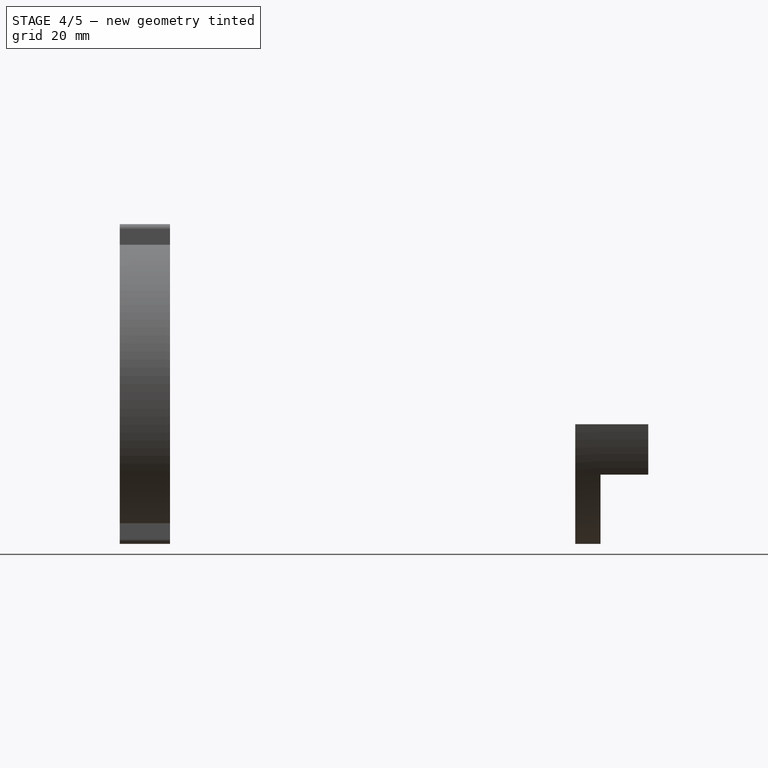
[diagram: stage 4 of 5 — right view after this stage's code; geometry added in this stage tinted green]
FEATURE [PartDesign::Mirrored] Mirrored  label="Con_todos_agujeros_pasantes"
  BaseFeature = -> Pocket016
  MirrorPlane = -> Sketch032 [V_Axis]
  Originals = -> [Pocket016]
  Placement = pos=(0,-4.5,-1e-15) rot=(0,0,1;0rad)
FEATURE [PartDesign::Fillet] Fillet
  Base = -> Mirrored [Edge123,Edge109]
  BaseFeature = -> Mirrored
  Placement = pos=(0,-4.5,-1e-15) rot=(0,0,1;0rad)
  Radius = 0.5
  SupportTransform = false
FEATURE [PartDesign::Fillet] Fillet001
  Base = -> Fillet [Edge5,Edge9]
  BaseFeature = -> Fillet
  Placement = pos=(0,-4.5,-1e-15) rot=(0,0,1;0rad)
  Radius = 1
  SupportTransform = false
FEATURE [PartDesign::Fillet] Fillet002
  Base = -> Fillet001 [Edge114,Edge115]
  BaseFeature = -> Fillet001
  Placement = pos=(0,-4.5,-1e-15) rot=(0,0,1;0rad)
  Radius = 1
  SupportTransform = false
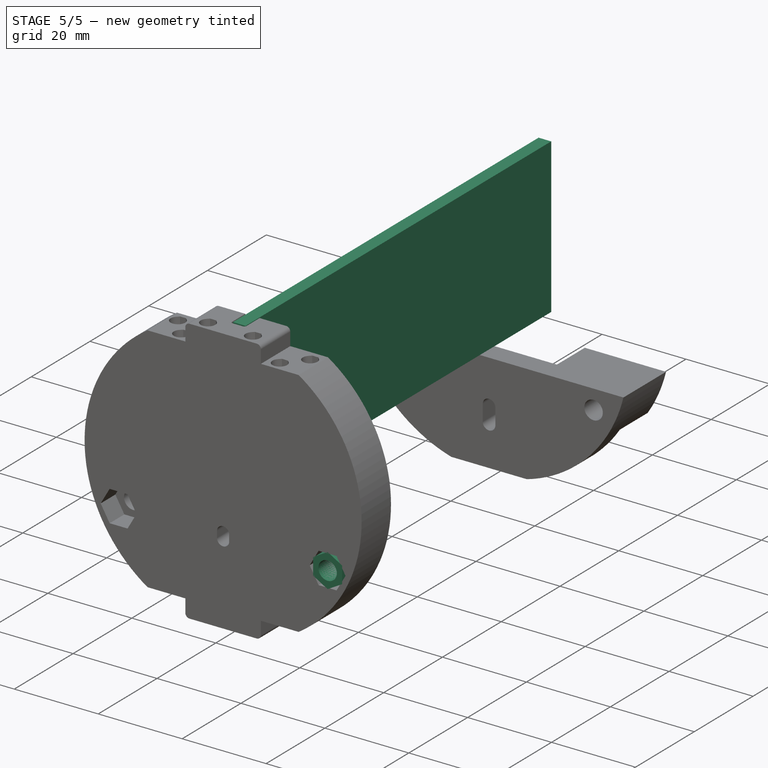
[diagram: stage 5 of 5 — iso view after this stage's code; geometry added in this stage tinted green]
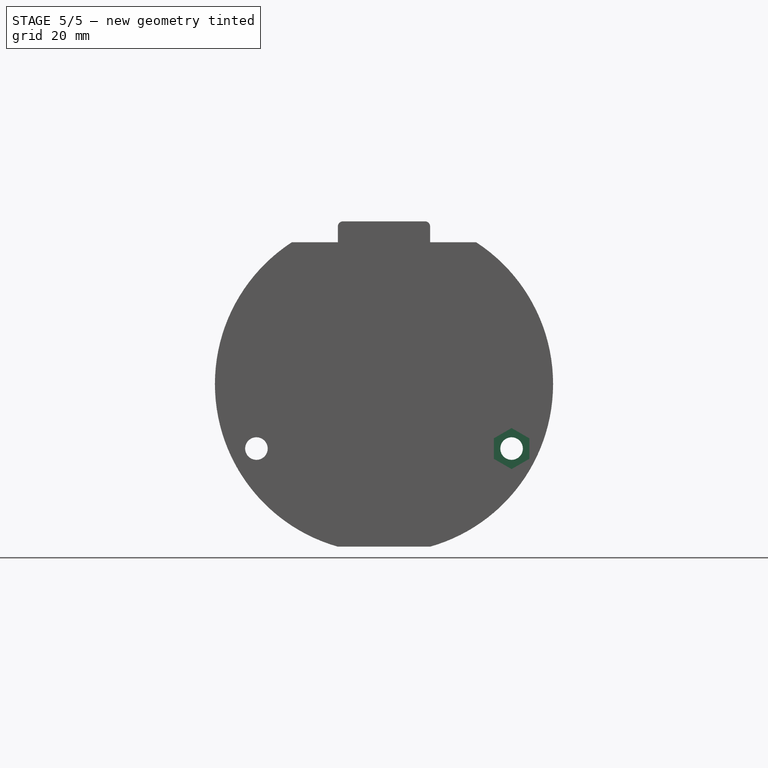
[diagram: stage 5 of 5 — front view after this stage's code; geometry added in this stage tinted green]
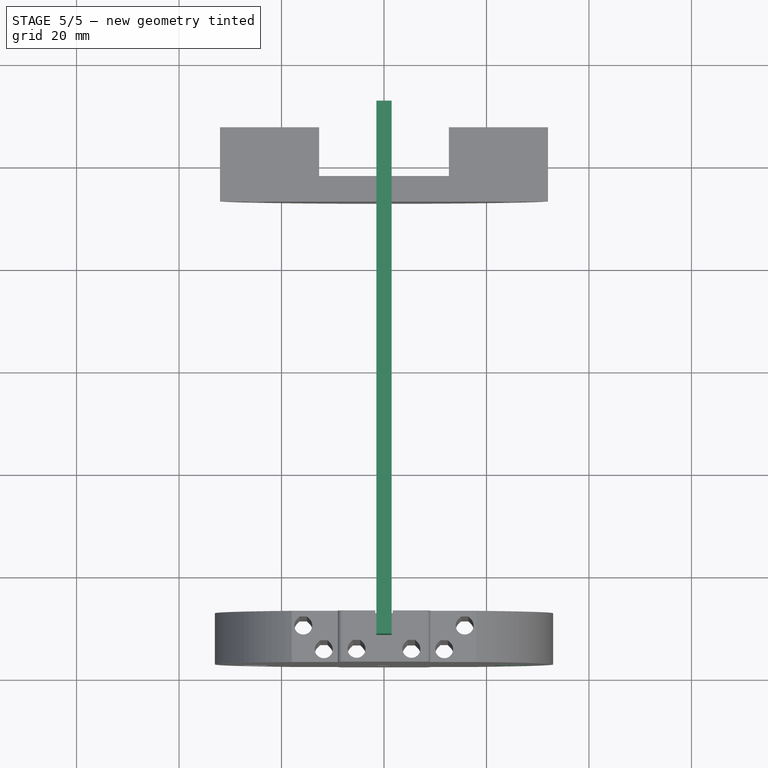
[diagram: stage 5 of 5 — top view after this stage's code; geometry added in this stage tinted green]
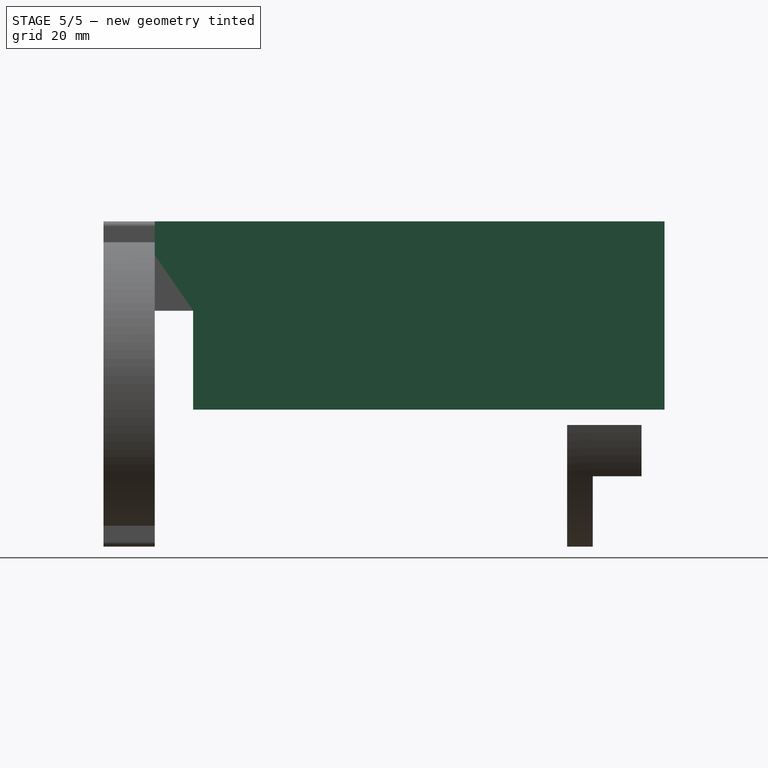
[diagram: stage 5 of 5 — right view after this stage's code; geometry added in this stage tinted green]
FEATURE [PartDesign::Body] Body  label="Habitaculo_Pila"
  Group = -> [Sketch,Pad,Sketch001,Pad001]
  Origin = -> Origin
  Tip = -> Pad001
FEATURE [PartDesign::ShapeBinder] ShapeBinder003
  Placement = pos=(0,-4.5,-1e-15) rot=(0,0,1;0rad)
  TraceSupport = false
FEATURE [Sketcher::SketchObject] Sketch022  label="Sketch_placa"
  ExternalGeometry = -> [ShapeBinder003]
  FullyConstrained = false
  Placement = pos=(0,0,-3.7e-14) rot=(0,0.707107,0.707107;3.14159rad)
  Support = -> [ShapeBinder003]
  expr: Constraints[8] = <<Datos>>.anchoPlaca
  sketch-geometry (5):
    g0: LineSegment StartX=-1.5 StartY=31.7351 StartZ=0 EndX=1.5 EndY=31.7351 EndZ=0
    g1: LineSegment StartX=1.5 StartY=31.7351 StartZ=0 EndX=1.5 EndY=-5 EndZ=0
    g2: LineSegment StartX=1.5 StartY=-5 StartZ=0 EndX=-1.5 EndY=-5 EndZ=0
    g3: LineSegment StartX=-1.5 StartY=-5 StartZ=0 EndX=-1.5 EndY=31.7351 EndZ=0
    g4: LineSegment StartX=1.5 StartY=-5 StartZ=0 EndX=1.5 EndY=-8 EndZ=0
  constraints (13):
    c: Coincident(g0,g1)
    c: Coincident(g1,g2)
    c: Coincident(g2,g3)
    c: Coincident(g3,g0)
    c: Horizontal(g2)
    c: Vertical(g1)
    c: Vertical(g3)
    c: Symmetric(g0,g0,g-2)
    c: DistanceX(g0,g0) = 3
    c: Coincident(g4,g1)
    c: PointOnObject(g4,g-3)
    c: Vertical(g4)
    c: DistanceY(g4,g4) = 3
FEATURE [PartDesign::Pad] Pad009  label="Placa_electrónica"
  Direction = (1,1,1)
  Length = 104
  Length2 = 100
  Midplane = true
  Placement = pos=(0,-4.5,-1e-15) rot=(0,0,1;0rad)
  Profile = -> Sketch022
  Type = 0
FEATURE [Sketcher::SketchObject] Sketch023
  ExternalGeometry = -> [Pad009]
  FullyConstrained = true
  MapMode = 5
  Placement = pos=(0,-52,5.17e-14) rot=(1,0,0;1.5708rad)
  Support = -> [Pad009]
  sketch-geometry (4):
    g0: LineSegment StartX=-1.5 StartY=-5 StartZ=0 EndX=1.5 EndY=-5 EndZ=0
    g1: LineSegment StartX=1.5 StartY=-5 StartZ=0 EndX=1.5 EndY=14.3 EndZ=0
    g2: LineSegment StartX=1.5 StartY=14.3 StartZ=0 EndX=-1.5 EndY=14.3 EndZ=0
    g3: LineSegment StartX=-1.5 StartY=14.3 StartZ=0 EndX=-1.5 EndY=-5 EndZ=0
  constraints (11):
    c: Coincident(g0,g1)
    c: Coincident(g1,g2)
    c: Coincident(g2,g3)
    c: Coincident(g3,g0)
    c: Horizontal(g0)
    c: Horizontal(g2)
    c: Vertical(g1)
    c: Vertical(g3)
    c: Coincident(g0,g-3)
    c: PointOnObject(g1,g-4)
    c: DistanceY(g1,g1) = 19.3
FEATURE [PartDesign::Pocket] Pocket011
  BaseFeature = -> Pad009
  Length = 12
  Length2 = 100
  Placement = pos=(0,-4.5,-1e-15) rot=(0,0,1;0rad)
  Profile = -> Sketch023
  Type = 0
FEATURE [PartDesign::Body] Body003  label="Placa_electronica"
  Group = -> [ShapeBinder003,Sketch022,Pad009,Sketch023,Pocket011]
  Origin = -> Origin003
  Tip = -> Pocket011
FEATURE [PartDesign::ShapeBinder] ShapeBinder
  Placement = pos=(0,-4.5,-1e-15) rot=(0,0,1;0rad)
  Support = -> [Pad001]
  TraceSupport = false
FEATURE [Sketcher::SketchObject] Sketch024  label="Forma_pasante1"
  ExternalGeometry = -> [ShapeBinder]
  FullyConstrained = true
  MapMode = 5
  Placement = pos=(0,-37.5,-1.19e-14) rot=(1,0,0;1.5708rad)
  Support = -> [ShapeBinder]
  sketch-geometry (8):
    g0: Circle CenterX=24.9 CenterY=-12.6 CenterZ=0 NormalX=0 NormalY=0 NormalZ=1 AngleXU=0 Radius=2.2
    g1: LineSegment StartX=28.3641 StartY=-14.6 StartZ=0 EndX=28.3641 EndY=-10.6 EndZ=0
    g2: LineSegment StartX=28.3641 StartY=-10.6 StartZ=0 EndX=24.9 EndY=-8.6 EndZ=0
    g3: LineSegment StartX=24.9 StartY=-8.6 StartZ=0 EndX=21.4359 EndY=-10.6 EndZ=0
    g4: LineSegment StartX=21.4359 StartY=-10.6 StartZ=0 EndX=21.4359 EndY=-14.6 EndZ=0
    g5: LineSegment StartX=21.4359 StartY=-14.6 StartZ=0 EndX=24.9 EndY=-16.6 EndZ=0
    g6: LineSegment StartX=24.9 StartY=-16.6 StartZ=0 EndX=28.3641 EndY=-14.6 EndZ=0
    g7: Circle CenterX=24.9 CenterY=-12.6 CenterZ=0 NormalX=0 NormalY=0 NormalZ=1 AngleXU=0 Radius=4
  constraints (18):
    c: Coincident(g0,g-3)
    c: Equal(g0,g-3)
    c: Coincident(g1,g2)
    c: Coincident(g2,g3)
    c: Coincident(g3,g4)
    c: Coincident(g4,g5)
    c: Coincident(g5,g6)
    c: Coincident(g6,g1)
    c: Equal(g1, g2-g6) x5
    c: PointOnObject(g1,g7)
    c: PointOnObject(g2,g7)
    c: PointOnObject(g3,g7)
    c: PointOnObject(g4,g7)
    c: PointOnObject(g5,g7)
    c: PointOnObject(g6,g7)
    c: Coincident(g7,g0)
    c: Vertical(g1)
    c: Distance(g2) = 4
FEATURE [PartDesign::Pad] Pad010
  Direction = (1,1,1)
  Length = 10
  Length2 = 100
  Placement = pos=(0,-4.5,-1e-15) rot=(0,0,1;0rad)
  Profile = -> Sketch024
  Type = 0
FEATURE [PartDesign::Body] Body004  label="Pasante1"
  Group = -> [ShapeBinder,Sketch024,Pad010]
  Origin = -> Origin004
  Tip = -> Pad010
FEATURE [PartDesign::ShapeBinder] ShapeBinder004
  Placement = pos=(0,-10,-2.2e-15) rot=(0,0,1;0rad)
  Support = -> [Pad010]
  TraceSupport = false
FEATURE [Sketcher::SketchObject] Sketch025
  ExternalGeometry = -> [ShapeBinder004]
  FullyConstrained = true
  MapMode = 5
  Placement = pos=(0,-47.5,-2.43e-14) rot=(1,0,0;1.5708rad)
  Support = -> [ShapeBinder004]
  sketch-geometry (8):
    g0: Circle CenterX=24.9 CenterY=-12.6 CenterZ=0 NormalX=0 NormalY=0 NormalZ=1 AngleXU=0 Radius=2.2
    g1: LineSegment StartX=28.3641 StartY=-10.6 StartZ=0 EndX=24.9 EndY=-8.6 EndZ=0
    g2: LineSegment StartX=24.9 StartY=-8.6 StartZ=0 EndX=21.4359 EndY=-10.6 EndZ=0
    g3: LineSegment StartX=21.4359 StartY=-10.6 StartZ=0 EndX=21.4359 EndY=-14.6 EndZ=0
    g4: LineSegment StartX=21.4359 StartY=-14.6 StartZ=0 EndX=24.9 EndY=-16.6 EndZ=0
    g5: LineSegment StartX=24.9 StartY=-16.6 StartZ=0 EndX=28.3641 EndY=-14.6 EndZ=0
    g6: LineSegment StartX=28.3641 StartY=-14.6 StartZ=0 EndX=28.3641 EndY=-10.6 EndZ=0
    g7: Circle CenterX=24.9 CenterY=-12.6 CenterZ=0 NormalX=0 NormalY=0 NormalZ=1 AngleXU=0 Radius=4
  constraints (17):
    c: Coincident(g0,g-5)
    c: PointOnObject(g-4,g0)
    c: Coincident(g1,g2)
    c: Coincident(g2,g3)
    c: Coincident(g3,g4)
    c: Coincident(g4,g5)
    c: Coincident(g5,g6)
    c: Coincident(g6,g1)
    c: Equal(g1, g2-g6) x5
    c: PointOnObject(g1,g7)
    c: PointOnObject(g2,g7)
    c: PointOnObject(g3,g7)
    c: PointOnObject(g4,g7)
    c: PointOnObject(g5,g7)
    c: PointOnObject(g6,g7)
    c: Coincident(g7,g0)
    c: Coincident(g6,g-3)
FEATURE [PartDesign::Pad] Pad011
  Direction = (1,1,1)
  Length = 10
  Length2 = 100
  Placement = pos=(0,-10,-2.2e-15) rot=(0,0,1;0rad)
  Profile = -> Sketch025
  Type = 0
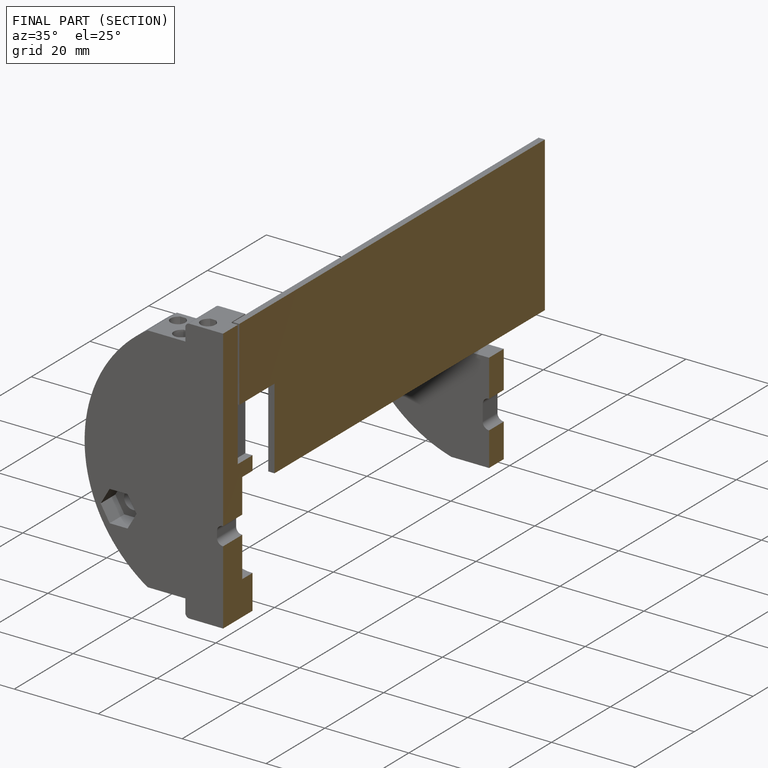
[diagram: finished part — half-section view (interior)]
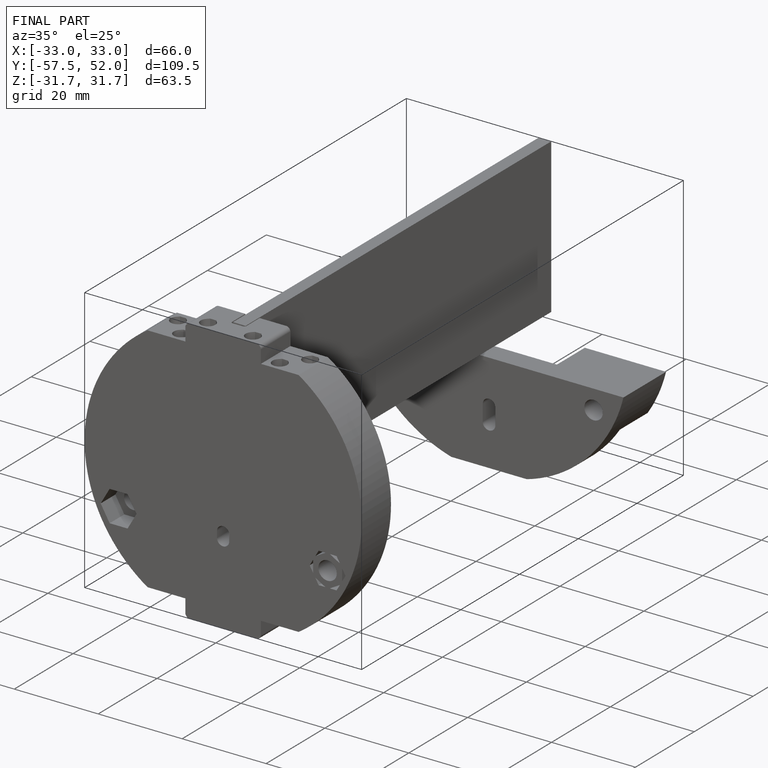
[diagram: finished part — iso view with bounding-box wireframe]
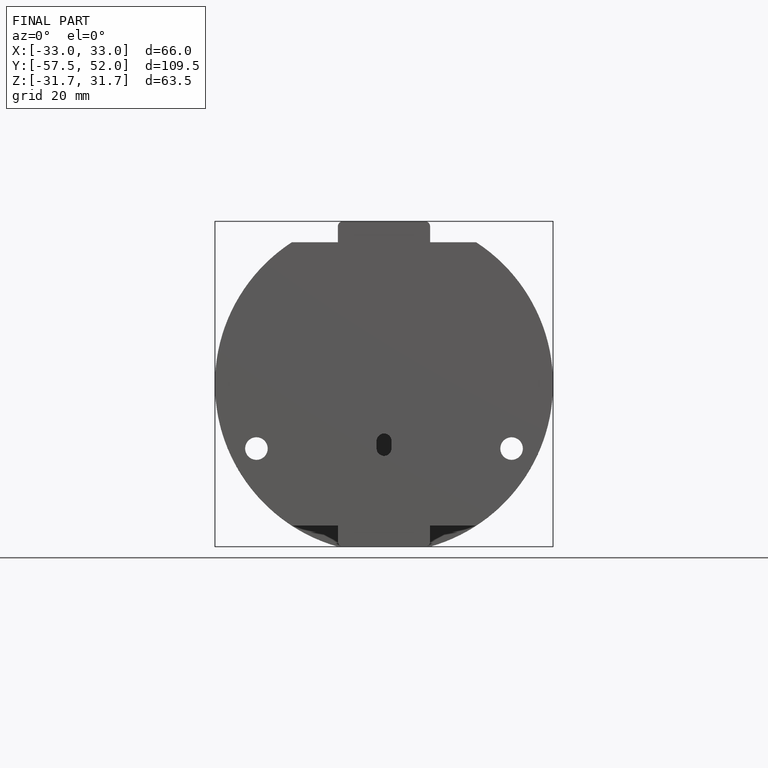
[diagram: finished part — front view with bounding-box wireframe]
